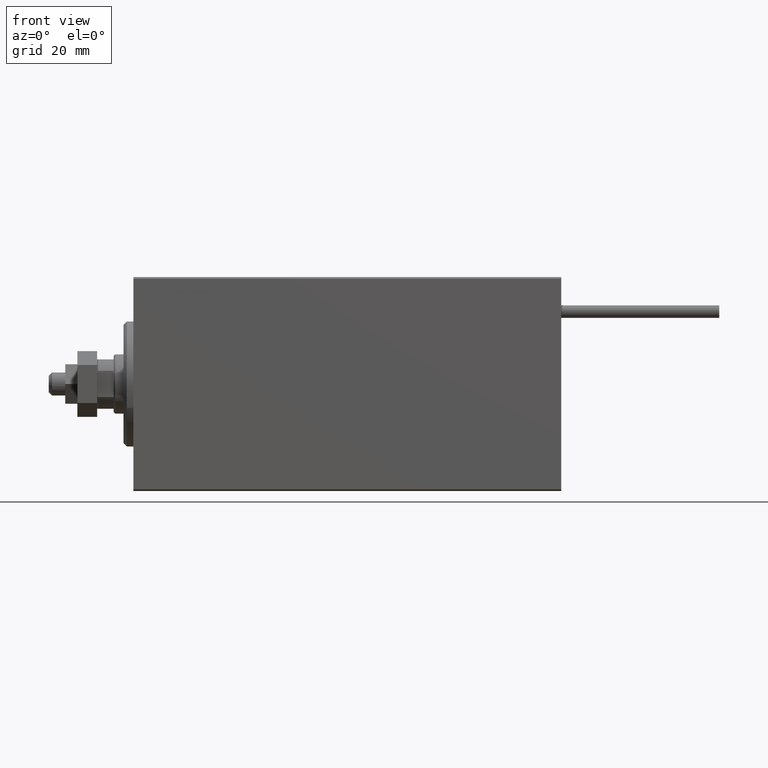
[diagram: clean part render]
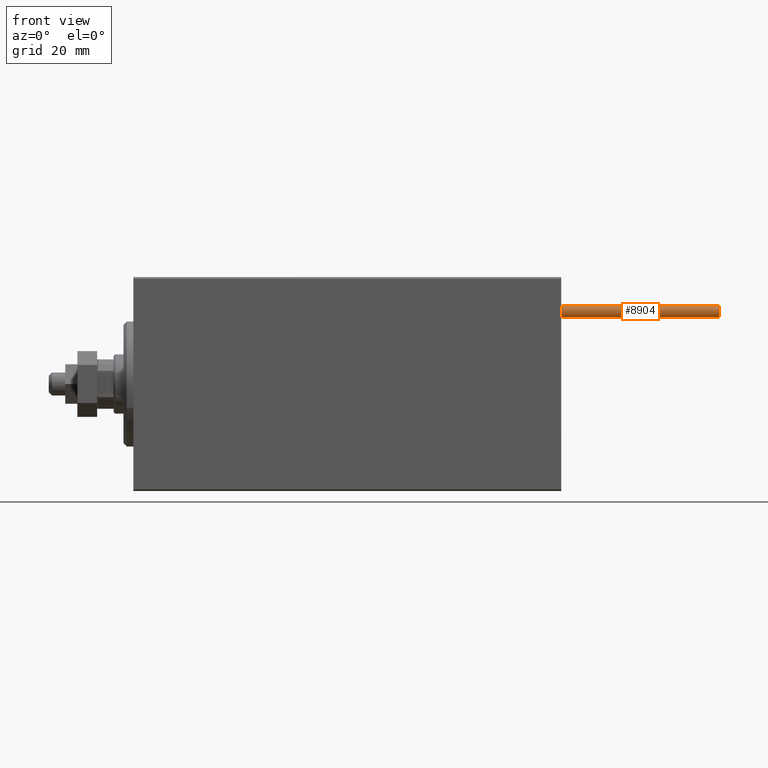
[diagram: same view with one face highlighted and labeled with its STEP entity id]
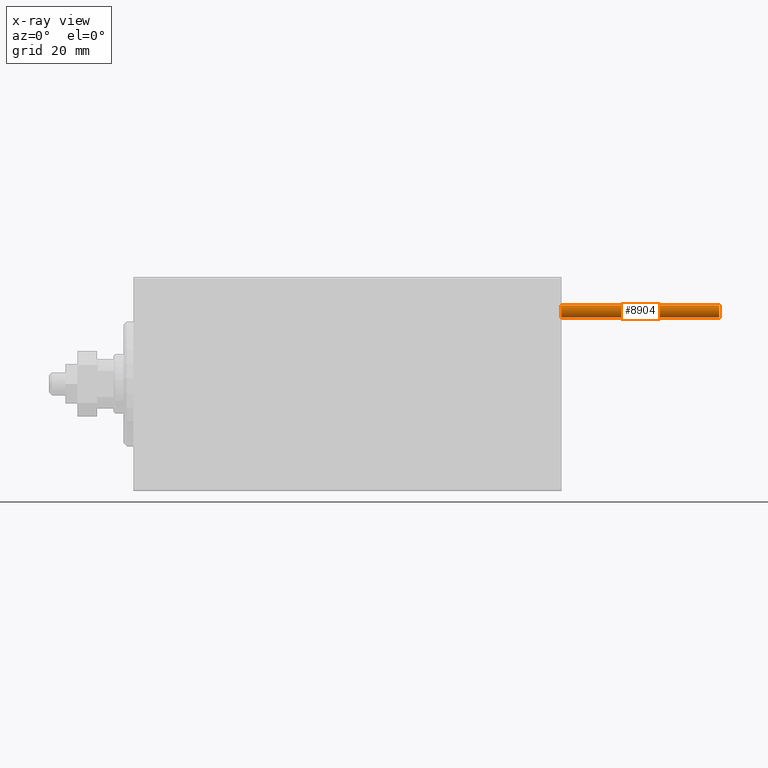
[diagram: x-ray of the same camera — body ghosted, the highlighted face saturated]
A machine part, front view. The second image highlights one B-rep face of the part: STEP entity #8904.
The next image is the same camera in x-ray: the body ghosted, the highlighted face saturated — about 0% of this face is hidden behind the body in this view.
In plain terms, the highlighted cylindrical surface (edge-blend (fillet) strip) has radius 1.9 mm, axis along (-1, -0, 0).
Its self-contained STEP definition (entity closure, byte-faithful):
#678 = ORIENTED_EDGE ( 'NONE', *, *, #43422, .T. ) ;
#997 = CARTESIAN_POINT ( 'NONE',  ( -1.899999999999999467, 0.000000000000000000, 48.00000000000000000 ) ) ;
#1238 = DIRECTION ( 'NONE',  ( 0.000000000000000000, 0.000000000000000000, 1.000000000000000000 ) ) ;
#1606 = ORIENTED_EDGE ( 'NONE', *, *, #24882, .F. ) ;
#4433 = EDGE_LOOP ( 'NONE', ( #7831, #1606, #19569, #678 ) ) ;
#7831 = ORIENTED_EDGE ( 'NONE', *, *, #45387, .F. ) ;
#8399 = DIRECTION ( 'NONE',  ( -0.000000000000000000, -0.000000000000000000, -1.000000000000000000 ) ) ;
#8904 = ADVANCED_FACE ( 'NONE', ( #37045 ), #40877, .T. ) ;
#13412 = DIRECTION ( 'NONE',  ( -0.000000000000000000, -0.000000000000000000, -1.000000000000000000 ) ) ;
#16725 = CARTESIAN_POINT ( 'NONE',  ( 0.000000000000000000, 0.000000000000000000, 0.000000000000000000 ) ) ;
#17386 = VERTEX_POINT ( 'NONE', #27525 ) ;
#17469 = DIRECTION ( 'NONE',  ( 0.000000000000000000, 0.000000000000000000, 1.000000000000000000 ) ) ;
#17922 = EDGE_CURVE ( 'NONE', #33910, #21048, #20083, .T. ) ;
#19569 = ORIENTED_EDGE ( 'NONE', *, *, #17922, .T. ) ;
#20083 = LINE ( 'NONE', #997, #39548 ) ;
#21048 = VERTEX_POINT ( 'NONE', #23824 ) ;
#23824 = CARTESIAN_POINT ( 'NONE',  ( -1.899999999999999467, 0.000000000000000000, 0.000000000000000000 ) ) ;
#23920 = LINE ( 'NONE', #28232, #40634 ) ;
#24882 = EDGE_CURVE ( 'NONE', #33910, #31100, #38138, .T. ) ;
#25126 = AXIS2_PLACEMENT_3D ( 'NONE', #16725, #17469, #40367 ) ;
#25138 = AXIS2_PLACEMENT_3D ( 'NONE', #31781, #1238, #35605 ) ;
#25613 = CARTESIAN_POINT ( 'NONE',  ( 1.899999999999999467, 2.326828918379970872E-16, 48.00000000000000000 ) ) ;
#27525 = CARTESIAN_POINT ( 'NONE',  ( 1.899999999999999467, 2.326828918379970872E-16, 0.000000000000000000 ) ) ;
#28232 = CARTESIAN_POINT ( 'NONE',  ( 1.899999999999999467, 2.326828918379970872E-16, 48.00000000000000000 ) ) ;
#28670 = DIRECTION ( 'NONE',  ( -1.000000000000000000, 0.000000000000000000, 0.000000000000000000 ) ) ;
#31100 = VERTEX_POINT ( 'NONE', #25613 ) ;
#31781 = CARTESIAN_POINT ( 'NONE',  ( 0.000000000000000000, 0.000000000000000000, 48.00000000000000000 ) ) ;
#33910 = VERTEX_POINT ( 'NONE', #46422 ) ;
#35605 = DIRECTION ( 'NONE',  ( 1.000000000000000000, 0.000000000000000000, 0.000000000000000000 ) ) ;
#36354 = DIRECTION ( 'NONE',  ( -0.000000000000000000, -0.000000000000000000, -1.000000000000000000 ) ) ;
#36804 = CARTESIAN_POINT ( 'NONE',  ( 0.000000000000000000, 0.000000000000000000, 48.00000000000000000 ) ) ;
#37045 = FACE_OUTER_BOUND ( 'NONE', #4433, .T. ) ;
#38138 = CIRCLE ( 'NONE', #25138, 1.899999999999999467 ) ;
#39548 = VECTOR ( 'NONE', #36354, 1000.000000000000000 ) ;
#39756 = CIRCLE ( 'NONE', #25126, 1.899999999999999467 ) ;
#40367 = DIRECTION ( 'NONE',  ( 1.000000000000000000, 0.000000000000000000, 0.000000000000000000 ) ) ;
#40634 = VECTOR ( 'NONE', #8399, 1000.000000000000000 ) ;
#40877 = CYLINDRICAL_SURFACE ( 'NONE', #42037, 1.899999999999999467 ) ;
#42037 = AXIS2_PLACEMENT_3D ( 'NONE', #36804, #13412, #28670 ) ;
#43422 = EDGE_CURVE ( 'NONE', #21048, #17386, #39756, .T. ) ;
#45387 = EDGE_CURVE ( 'NONE', #31100, #17386, #23920, .T. ) ;
#46422 = CARTESIAN_POINT ( 'NONE',  ( -1.899999999999999467, 0.000000000000000000, 48.00000000000000000 ) ) ;